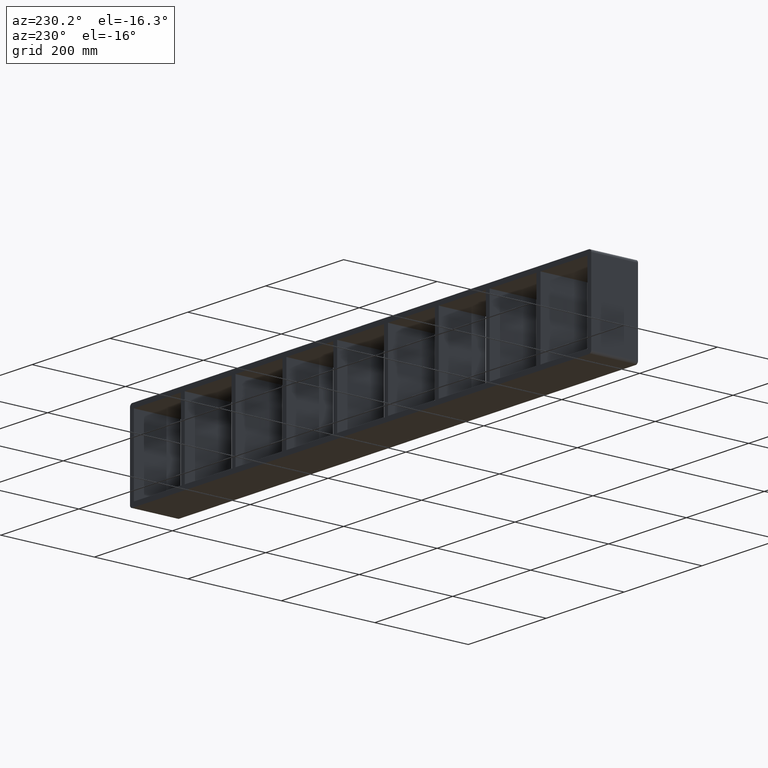
[diagram: clean part render]
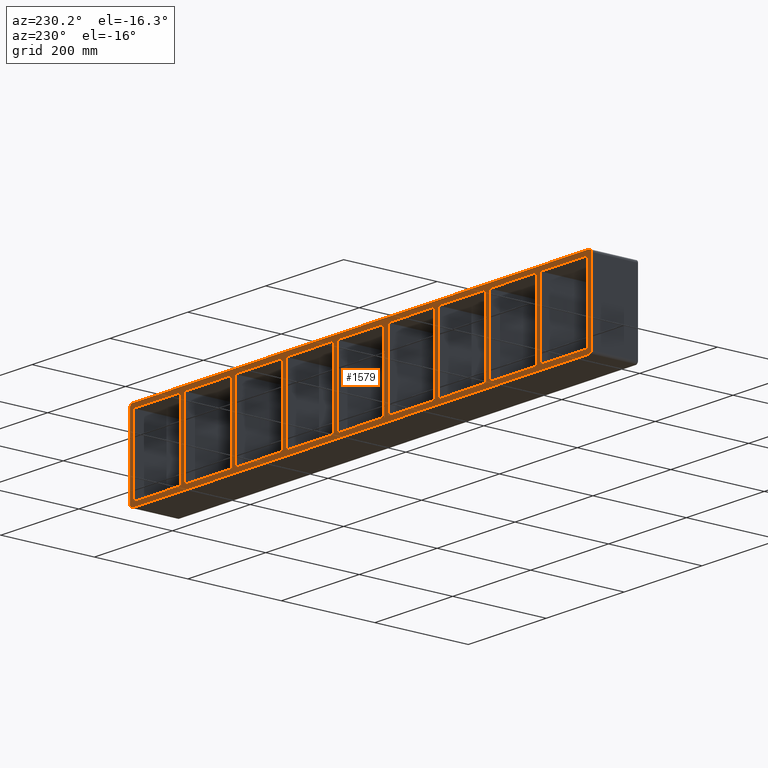
[diagram: same view with one face highlighted and labeled with its STEP entity id]
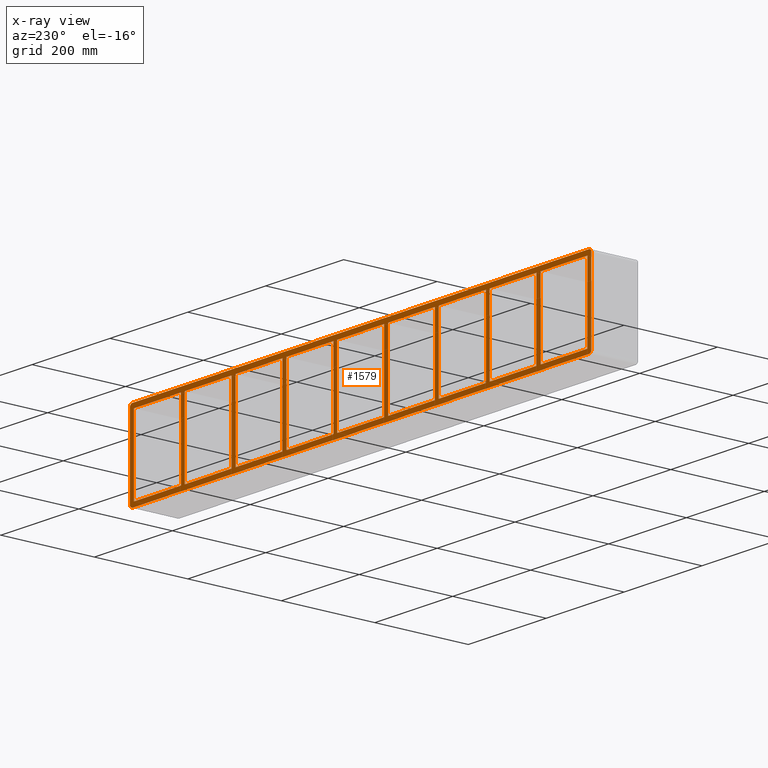
[diagram: x-ray of the same camera — body ghosted, the highlighted face saturated]
A machine part, auxiliary view. The second image highlights one B-rep face of the part: STEP entity #1579.
The next image is the same camera in x-ray: the body ghosted, the highlighted face saturated — about 0% of this face is hidden behind the body in this view.
In plain terms, the highlighted planar face has unit normal (0, -1, 0).
Its self-contained STEP definition (entity closure, byte-faithful):
#83=CARTESIAN_POINT('',(451.74999999998931,97.0,79.75));
#84=VERTEX_POINT('',#83);
#91=CARTESIAN_POINT('',(451.74999999998931,97.0,-79.750000000000014));
#92=VERTEX_POINT('',#91);
#93=CARTESIAN_POINT('',(451.74999999998931,97.0,-79.750000000000014));
#94=DIRECTION('',(0.0,0.0,1.0));
#95=VECTOR('',#94,159.5);
#96=LINE('',#93,#95);
#97=EDGE_CURVE('',#92,#84,#96,.T.);
#123=CARTESIAN_POINT('',(461.74999999999375,97.0,-79.750000000003766));
#124=VERTEX_POINT('',#123);
#131=CARTESIAN_POINT('',(461.74999999999375,97.0,79.75));
#132=VERTEX_POINT('',#131);
#133=CARTESIAN_POINT('',(461.74999999999375,97.0,79.75));
#134=DIRECTION('',(0.0,0.0,-1.0));
#135=VECTOR('',#134,159.50000000000375);
#136=LINE('',#133,#135);
#137=EDGE_CURVE('',#132,#124,#136,.T.);
#163=CARTESIAN_POINT('',(321.24999999998931,97.0,79.75));
#164=VERTEX_POINT('',#163);
#171=CARTESIAN_POINT('',(321.24999999998931,97.0,-79.750000000000014));
#172=VERTEX_POINT('',#171);
#173=CARTESIAN_POINT('',(321.24999999998931,97.0,-79.750000000000014));
#174=DIRECTION('',(0.0,0.0,1.0));
#175=VECTOR('',#174,159.5);
#176=LINE('',#173,#175);
#177=EDGE_CURVE('',#172,#164,#176,.T.);
#203=CARTESIAN_POINT('',(331.24999999999375,97.0,-79.750000000003766));
#204=VERTEX_POINT('',#203);
#211=CARTESIAN_POINT('',(331.24999999999375,97.0,79.75));
#212=VERTEX_POINT('',#211);
#213=CARTESIAN_POINT('',(331.24999999999375,97.0,79.75));
#214=DIRECTION('',(0.0,0.0,-1.0));
#215=VECTOR('',#214,159.50000000000375);
#216=LINE('',#213,#215);
#217=EDGE_CURVE('',#212,#204,#216,.T.);
#243=CARTESIAN_POINT('',(190.74999999998926,97.0,79.75));
#244=VERTEX_POINT('',#243);
#251=CARTESIAN_POINT('',(190.74999999998926,97.0,-79.750000000000014));
#252=VERTEX_POINT('',#251);
#253=CARTESIAN_POINT('',(190.74999999998926,97.0,-79.750000000000014));
#254=DIRECTION('',(0.0,0.0,1.0));
#255=VECTOR('',#254,159.5);
#256=LINE('',#253,#255);
#257=EDGE_CURVE('',#252,#244,#256,.T.);
#283=CARTESIAN_POINT('',(200.74999999999366,97.0,-79.750000000003766));
#284=VERTEX_POINT('',#283);
#291=CARTESIAN_POINT('',(200.74999999999366,97.0,79.75));
#292=VERTEX_POINT('',#291);
#293=CARTESIAN_POINT('',(200.74999999999366,97.0,79.75));
#294=DIRECTION('',(0.0,0.0,-1.0));
#295=VECTOR('',#294,159.50000000000375);
#296=LINE('',#293,#295);
#297=EDGE_CURVE('',#292,#284,#296,.T.);
#323=CARTESIAN_POINT('',(60.249999999989292,97.0,79.75));
#324=VERTEX_POINT('',#323);
#331=CARTESIAN_POINT('',(60.249999999989292,97.0,-79.750000000000014));
#332=VERTEX_POINT('',#331);
#333=CARTESIAN_POINT('',(60.249999999989292,97.0,-79.750000000000014));
#334=DIRECTION('',(0.0,0.0,1.0));
#335=VECTOR('',#334,159.5);
#336=LINE('',#333,#335);
#337=EDGE_CURVE('',#332,#324,#336,.T.);
#363=CARTESIAN_POINT('',(70.24999999999369,97.0,-79.750000000003766));
#364=VERTEX_POINT('',#363);
#371=CARTESIAN_POINT('',(70.24999999999369,97.0,79.75));
#372=VERTEX_POINT('',#371);
#373=CARTESIAN_POINT('',(70.24999999999369,97.0,79.75));
#374=DIRECTION('',(0.0,0.0,-1.0));
#375=VECTOR('',#374,159.50000000000375);
#376=LINE('',#373,#375);
#377=EDGE_CURVE('',#372,#364,#376,.T.);
#403=CARTESIAN_POINT('',(-70.250000000010715,97.0,79.75));
#404=VERTEX_POINT('',#403);
#411=CARTESIAN_POINT('',(-70.250000000010715,97.0,-79.750000000000014));
#412=VERTEX_POINT('',#411);
#413=CARTESIAN_POINT('',(-70.250000000010715,97.0,-79.750000000000014));
#414=DIRECTION('',(0.0,0.0,1.0));
#415=VECTOR('',#414,159.5);
#416=LINE('',#413,#415);
#417=EDGE_CURVE('',#412,#404,#416,.T.);
#443=CARTESIAN_POINT('',(-60.25000000000631,97.0,-79.750000000003766));
#444=VERTEX_POINT('',#443);
#451=CARTESIAN_POINT('',(-60.25000000000631,97.0,79.75));
#452=VERTEX_POINT('',#451);
#453=CARTESIAN_POINT('',(-60.25000000000631,97.0,79.75));
#454=DIRECTION('',(0.0,0.0,-1.0));
#455=VECTOR('',#454,159.50000000000375);
#456=LINE('',#453,#455);
#457=EDGE_CURVE('',#452,#444,#456,.T.);
#483=CARTESIAN_POINT('',(-200.7500000000108,97.0,79.75));
#484=VERTEX_POINT('',#483);
#491=CARTESIAN_POINT('',(-200.7500000000108,97.0,-79.750000000000014));
#492=VERTEX_POINT('',#491);
#493=CARTESIAN_POINT('',(-200.7500000000108,97.0,-79.750000000000014));
#494=DIRECTION('',(0.0,0.0,1.0));
#495=VECTOR('',#494,159.5);
#496=LINE('',#493,#495);
#497=EDGE_CURVE('',#492,#484,#496,.T.);
#523=CARTESIAN_POINT('',(-190.75000000000639,97.0,-79.750000000003766));
#524=VERTEX_POINT('',#523);
#531=CARTESIAN_POINT('',(-190.75000000000639,97.0,79.75));
#532=VERTEX_POINT('',#531);
#533=CARTESIAN_POINT('',(-190.75000000000639,97.0,79.75));
#534=DIRECTION('',(0.0,0.0,-1.0));
#535=VECTOR('',#534,159.50000000000375);
#536=LINE('',#533,#535);
#537=EDGE_CURVE('',#532,#524,#536,.T.);
#563=CARTESIAN_POINT('',(-331.2500000000108,97.0,79.75));
#564=VERTEX_POINT('',#563);
#571=CARTESIAN_POINT('',(-331.2500000000108,97.0,-79.750000000000014));
#572=VERTEX_POINT('',#571);
#573=CARTESIAN_POINT('',(-331.2500000000108,97.0,-79.750000000000014));
#574=DIRECTION('',(0.0,0.0,1.0));
#575=VECTOR('',#574,159.5);
#576=LINE('',#573,#575);
#577=EDGE_CURVE('',#572,#564,#576,.T.);
#603=CARTESIAN_POINT('',(-321.25000000000637,97.0,-79.750000000003766));
#604=VERTEX_POINT('',#603);
#611=CARTESIAN_POINT('',(-321.25000000000637,97.0,79.75));
#612=VERTEX_POINT('',#611);
#613=CARTESIAN_POINT('',(-321.25000000000637,97.0,79.75));
#614=DIRECTION('',(0.0,0.0,-1.0));
#615=VECTOR('',#614,159.50000000000375);
#616=LINE('',#613,#615);
#617=EDGE_CURVE('',#612,#604,#616,.T.);
#634=CARTESIAN_POINT('',(-451.75000000000637,97.0,-79.750000000003766));
#635=VERTEX_POINT('',#634);
#636=CARTESIAN_POINT('',(-451.75000000000637,97.0,-79.750000000000014));
#637=DIRECTION('',(1.0,0.0,0.0));
#638=VECTOR('',#637,120.49999999999557);
#639=LINE('',#636,#638);
#640=EDGE_CURVE('',#635,#572,#639,.T.);
#665=CARTESIAN_POINT('',(-321.25000000000637,97.0,-79.750000000000014));
#666=DIRECTION('',(1.0,0.0,0.0));
#667=VECTOR('',#666,120.49999999999557);
#668=LINE('',#665,#667);
#669=EDGE_CURVE('',#604,#492,#668,.T.);
#687=CARTESIAN_POINT('',(-190.75000000000637,97.0,-79.750000000000014));
#688=DIRECTION('',(1.0,0.0,0.0));
#689=VECTOR('',#688,120.49999999999568);
#690=LINE('',#687,#689);
#691=EDGE_CURVE('',#524,#412,#690,.T.);
#709=CARTESIAN_POINT('',(-60.250000000006253,97.0,-79.750000000000014));
#710=DIRECTION('',(1.0,0.0,0.0));
#711=VECTOR('',#710,120.49999999999554);
#712=LINE('',#709,#711);
#713=EDGE_CURVE('',#444,#332,#712,.T.);
#731=CARTESIAN_POINT('',(70.24999999999369,97.0,-79.750000000000014));
#732=DIRECTION('',(1.0,0.0,0.0));
#733=VECTOR('',#732,120.49999999999557);
#734=LINE('',#731,#733);
#735=EDGE_CURVE('',#364,#252,#734,.T.);
#753=CARTESIAN_POINT('',(200.74999999999366,97.0,-79.750000000000014));
#754=DIRECTION('',(1.0,0.0,0.0));
#755=VECTOR('',#754,120.49999999999565);
#756=LINE('',#753,#755);
#757=EDGE_CURVE('',#284,#172,#756,.T.);
#775=CARTESIAN_POINT('',(331.24999999999375,97.0,-79.750000000000014));
#776=DIRECTION('',(1.0,0.0,0.0));
#777=VECTOR('',#776,120.49999999999557);
#778=LINE('',#775,#777);
#779=EDGE_CURVE('',#204,#92,#778,.T.);
#805=CARTESIAN_POINT('',(582.25,97.0,-79.750000000000014));
#806=VERTEX_POINT('',#805);
#813=CARTESIAN_POINT('',(461.74999999999375,97.0,-79.750000000000014));
#814=DIRECTION('',(1.0,0.0,0.0));
#815=VECTOR('',#814,120.50000000000625);
#816=LINE('',#813,#815);
#817=EDGE_CURVE('',#124,#806,#816,.T.);
#836=CARTESIAN_POINT('',(-451.75000000000637,97.0,79.75));
#837=VERTEX_POINT('',#836);
#844=CARTESIAN_POINT('',(-331.2500000000108,97.0,79.75));
#845=DIRECTION('',(-1.0,0.0,0.0));
#846=VECTOR('',#845,120.49999999999557);
#847=LINE('',#844,#846);
#848=EDGE_CURVE('',#564,#837,#847,.T.);
#866=CARTESIAN_POINT('',(-200.7500000000108,97.0,79.75));
#867=DIRECTION('',(-1.0,0.0,0.0));
#868=VECTOR('',#867,120.49999999999562);
#869=LINE('',#866,#868);
#870=EDGE_CURVE('',#484,#612,#869,.T.);
#888=CARTESIAN_POINT('',(-70.250000000010715,97.0,79.75));
#889=DIRECTION('',(-1.0,0.0,0.0));
#890=VECTOR('',#889,120.49999999999568);
#891=LINE('',#888,#890);
#892=EDGE_CURVE('',#404,#532,#891,.T.);
#910=CARTESIAN_POINT('',(60.249999999989257,97.0,79.75));
#911=DIRECTION('',(-1.0,0.0,0.0));
#912=VECTOR('',#911,120.49999999999557);
#913=LINE('',#910,#912);
#914=EDGE_CURVE('',#324,#452,#913,.T.);
#932=CARTESIAN_POINT('',(190.74999999998926,97.0,79.75));
#933=DIRECTION('',(-1.0,0.0,0.0));
#934=VECTOR('',#933,120.49999999999557);
#935=LINE('',#932,#934);
#936=EDGE_CURVE('',#244,#372,#935,.T.);
#954=CARTESIAN_POINT('',(321.24999999998937,97.0,79.75));
#955=DIRECTION('',(-1.0,0.0,0.0));
#956=VECTOR('',#955,120.49999999999568);
#957=LINE('',#954,#956);
#958=EDGE_CURVE('',#164,#292,#957,.T.);
#969=CARTESIAN_POINT('',(582.25,97.0,79.75));
#970=VERTEX_POINT('',#969);
#971=CARTESIAN_POINT('',(582.25,97.0,79.75));
#972=DIRECTION('',(-1.0,0.0,0.0));
#973=VECTOR('',#972,120.50000000000631);
#974=LINE('',#971,#973);
#975=EDGE_CURVE('',#970,#132,#974,.T.);
#1007=CARTESIAN_POINT('',(451.74999999998937,97.0,79.75));
#1008=DIRECTION('',(-1.0,0.0,0.0));
#1009=VECTOR('',#1008,120.49999999999557);
#1010=LINE('',#1007,#1009);
#1011=EDGE_CURVE('',#84,#212,#1010,.T.);
#1031=CARTESIAN_POINT('',(-461.7500000000108,97.0,79.75));
#1032=VERTEX_POINT('',#1031);
#1039=CARTESIAN_POINT('',(-461.7500000000108,97.0,-79.750000000000014));
#1040=VERTEX_POINT('',#1039);
#1041=CARTESIAN_POINT('',(-461.7500000000108,97.0,-79.750000000000014));
#1042=DIRECTION('',(0.0,0.0,1.0));
#1043=VECTOR('',#1042,159.5);
#1044=LINE('',#1041,#1043);
#1045=EDGE_CURVE('',#1040,#1032,#1044,.T.);
#1068=CARTESIAN_POINT('',(-451.75000000000637,97.0,79.75));
#1069=DIRECTION('',(0.0,0.0,-1.0));
#1070=VECTOR('',#1069,159.50000000000375);
#1071=LINE('',#1068,#1070);
#1072=EDGE_CURVE('',#837,#635,#1071,.T.);
#1084=CARTESIAN_POINT('',(-582.25,97.0,-79.750000000000014));
#1085=VERTEX_POINT('',#1084);
#1086=CARTESIAN_POINT('',(-582.24999999999989,97.0,-79.750000000000014));
#1087=DIRECTION('',(1.0,0.0,0.0));
#1088=VECTOR('',#1087,120.4999999999892);
#1089=LINE('',#1086,#1088);
#1090=EDGE_CURVE('',#1085,#1040,#1089,.T.);
#1123=CARTESIAN_POINT('',(-582.25,97.0,79.75));
#1124=VERTEX_POINT('',#1123);
#1131=CARTESIAN_POINT('',(-461.7500000000108,97.0,79.75));
#1132=DIRECTION('',(-1.0,0.0,0.0));
#1133=VECTOR('',#1132,120.4999999999892);
#1134=LINE('',#1131,#1133);
#1135=EDGE_CURVE('',#1032,#1124,#1134,.T.);
#1153=CARTESIAN_POINT('',(582.25,97.0,-79.750000000000028));
#1154=DIRECTION('',(0.0,0.0,1.0));
#1155=VECTOR('',#1154,159.50000000000003);
#1156=LINE('',#1153,#1155);
#1157=EDGE_CURVE('',#806,#970,#1156,.T.);
#1175=CARTESIAN_POINT('',(-582.25,97.0,79.75));
#1176=DIRECTION('',(0.0,0.0,-1.0));
#1177=VECTOR('',#1176,159.5);
#1178=LINE('',#1175,#1177);
#1179=EDGE_CURVE('',#1124,#1085,#1178,.T.);
#1319=CARTESIAN_POINT('',(592.25000000000011,97.0,83.749999999999986));
#1320=VERTEX_POINT('',#1319);
#1327=CARTESIAN_POINT('',(586.25000000000011,97.0,89.750000000000014));
#1328=VERTEX_POINT('',#1327);
#1329=CARTESIAN_POINT('',(586.25000000000011,97.0,83.75));
#1330=DIRECTION('',(0.0,1.0,0.0));
#1331=DIRECTION('',(0.0,0.0,1.0));
#1332=AXIS2_PLACEMENT_3D('',#1329,#1330,#1331);
#1333=CIRCLE('',#1332,6.000000000000001);
#1334=EDGE_CURVE('',#1328,#1320,#1333,.T.);
#1352=CARTESIAN_POINT('',(-586.25,97.0,89.750000000000014));
#1353=VERTEX_POINT('',#1352);
#1354=CARTESIAN_POINT('',(-586.25,97.0,89.750000000000014));
#1355=DIRECTION('',(1.0,0.0,0.0));
#1356=VECTOR('',#1355,1172.5000000000002);
#1357=LINE('',#1354,#1356);
#1358=EDGE_CURVE('',#1353,#1328,#1357,.T.);
#1376=CARTESIAN_POINT('',(-592.25,97.0,83.749999999999986));
#1377=VERTEX_POINT('',#1376);
#1378=CARTESIAN_POINT('',(-586.25,97.0,83.75));
#1379=DIRECTION('',(0.0,1.0,0.0));
#1380=DIRECTION('',(-1.0,0.0,0.0));
#1381=AXIS2_PLACEMENT_3D('',#1378,#1379,#1380);
#1382=CIRCLE('',#1381,6.000000000000001);
#1383=EDGE_CURVE('',#1377,#1353,#1382,.T.);
#1401=CARTESIAN_POINT('',(-592.25,97.0,-83.750000000000014));
#1402=VERTEX_POINT('',#1401);
#1403=CARTESIAN_POINT('',(-592.25,97.0,-83.75));
#1404=DIRECTION('',(0.0,0.0,1.0));
#1405=VECTOR('',#1404,167.5);
#1406=LINE('',#1403,#1405);
#1407=EDGE_CURVE('',#1402,#1377,#1406,.T.);
#1425=CARTESIAN_POINT('',(-586.25,97.0,-89.750000000000028));
#1426=VERTEX_POINT('',#1425);
#1427=CARTESIAN_POINT('',(-586.25,97.0,-83.75));
#1428=DIRECTION('',(0.0,1.0,0.0));
#1429=DIRECTION('',(0.0,0.0,-1.0));
#1430=AXIS2_PLACEMENT_3D('',#1427,#1428,#1429);
#1431=CIRCLE('',#1430,6.000000000000001);
#1432=EDGE_CURVE('',#1426,#1402,#1431,.T.);
#1450=CARTESIAN_POINT('',(586.25000000000011,97.0,-89.750000000000028));
#1451=VERTEX_POINT('',#1450);
#1452=CARTESIAN_POINT('',(586.25000000000011,97.0,-89.750000000000014));
#1453=DIRECTION('',(-1.0,0.0,0.0));
#1454=VECTOR('',#1453,1172.5000000000002);
#1455=LINE('',#1452,#1454);
#1456=EDGE_CURVE('',#1451,#1426,#1455,.T.);
#1474=CARTESIAN_POINT('',(592.25,97.0,-83.750000000000014));
#1475=VERTEX_POINT('',#1474);
#1476=CARTESIAN_POINT('',(586.25000000000011,97.0,-83.75));
#1477=DIRECTION('',(0.0,1.0,0.0));
#1478=DIRECTION('',(1.0,0.0,0.0));
#1479=AXIS2_PLACEMENT_3D('',#1476,#1477,#1478);
#1480=CIRCLE('',#1479,6.000000000000001);
#1481=EDGE_CURVE('',#1475,#1451,#1480,.T.);
#1499=CARTESIAN_POINT('',(592.25000000000011,97.0,83.749999999999986));
#1500=DIRECTION('',(0.0,0.0,-1.0));
#1501=VECTOR('',#1500,167.5);
#1502=LINE('',#1499,#1501);
#1503=EDGE_CURVE('',#1320,#1475,#1502,.T.);
#1510=CARTESIAN_POINT('',(7.516613E-014,97.0,-1.475775E-016));
#1511=DIRECTION('',(0.0,-1.0,0.0));
#1512=DIRECTION('',(0.0,0.0,-1.0));
#1513=AXIS2_PLACEMENT_3D('',#1510,#1511,#1512);
#1514=PLANE('',#1513);
#1515=ORIENTED_EDGE('',*,*,#1503,.T.);
#1516=ORIENTED_EDGE('',*,*,#1481,.T.);
#1517=ORIENTED_EDGE('',*,*,#1456,.T.);
#1518=ORIENTED_EDGE('',*,*,#1432,.T.);
#1519=ORIENTED_EDGE('',*,*,#1407,.T.);
#1520=ORIENTED_EDGE('',*,*,#1383,.T.);
#1521=ORIENTED_EDGE('',*,*,#1358,.T.);
#1522=ORIENTED_EDGE('',*,*,#1334,.T.);
#1523=EDGE_LOOP('',(#1515,#1516,#1517,#1518,#1519,#1520,#1521,#1522));
#1524=FACE_OUTER_BOUND('',#1523,.T.);
#1525=ORIENTED_EDGE('',*,*,#817,.T.);
#1526=ORIENTED_EDGE('',*,*,#1157,.T.);
#1527=ORIENTED_EDGE('',*,*,#975,.T.);
#1528=ORIENTED_EDGE('',*,*,#137,.T.);
#1529=EDGE_LOOP('',(#1525,#1526,#1527,#1528));
#1530=FACE_BOUND('',#1529,.T.);
#1531=ORIENTED_EDGE('',*,*,#97,.T.);
#1532=ORIENTED_EDGE('',*,*,#1011,.T.);
#1533=ORIENTED_EDGE('',*,*,#217,.T.);
#1534=ORIENTED_EDGE('',*,*,#779,.T.);
#1535=EDGE_LOOP('',(#1531,#1532,#1533,#1534));
#1536=FACE_BOUND('',#1535,.T.);
#1537=ORIENTED_EDGE('',*,*,#177,.T.);
#1538=ORIENTED_EDGE('',*,*,#958,.T.);
#1539=ORIENTED_EDGE('',*,*,#297,.T.);
#1540=ORIENTED_EDGE('',*,*,#757,.T.);
#1541=EDGE_LOOP('',(#1537,#1538,#1539,#1540));
#1542=FACE_BOUND('',#1541,.T.);
#1543=ORIENTED_EDGE('',*,*,#257,.T.);
#1544=ORIENTED_EDGE('',*,*,#936,.T.);
#1545=ORIENTED_EDGE('',*,*,#377,.T.);
#1546=ORIENTED_EDGE('',*,*,#735,.T.);
#1547=EDGE_LOOP('',(#1543,#1544,#1545,#1546));
#1548=FACE_BOUND('',#1547,.T.);
#1549=ORIENTED_EDGE('',*,*,#337,.T.);
#1550=ORIENTED_EDGE('',*,*,#914,.T.);
#1551=ORIENTED_EDGE('',*,*,#457,.T.);
#1552=ORIENTED_EDGE('',*,*,#713,.T.);
#1553=EDGE_LOOP('',(#1549,#1550,#1551,#1552));
#1554=FACE_BOUND('',#1553,.T.);
#1555=ORIENTED_EDGE('',*,*,#417,.T.);
#1556=ORIENTED_EDGE('',*,*,#892,.T.);
#1557=ORIENTED_EDGE('',*,*,#537,.T.);
#1558=ORIENTED_EDGE('',*,*,#691,.T.);
#1559=EDGE_LOOP('',(#1555,#1556,#1557,#1558));
#1560=FACE_BOUND('',#1559,.T.);
#1561=ORIENTED_EDGE('',*,*,#497,.T.);
#1562=ORIENTED_EDGE('',*,*,#870,.T.);
#1563=ORIENTED_EDGE('',*,*,#617,.T.);
#1564=ORIENTED_EDGE('',*,*,#669,.T.);
#1565=EDGE_LOOP('',(#1561,#1562,#1563,#1564));
#1566=FACE_BOUND('',#1565,.T.);
#1567=ORIENTED_EDGE('',*,*,#577,.T.);
#1568=ORIENTED_EDGE('',*,*,#848,.T.);
#1569=ORIENTED_EDGE('',*,*,#1072,.T.);
#1570=ORIENTED_EDGE('',*,*,#640,.T.);
#1571=EDGE_LOOP('',(#1567,#1568,#1569,#1570));
#1572=FACE_BOUND('',#1571,.T.);
#1573=ORIENTED_EDGE('',*,*,#1045,.T.);
#1574=ORIENTED_EDGE('',*,*,#1135,.T.);
#1575=ORIENTED_EDGE('',*,*,#1179,.T.);
#1576=ORIENTED_EDGE('',*,*,#1090,.T.);
#1577=EDGE_LOOP('',(#1573,#1574,#1575,#1576));
#1578=FACE_BOUND('',#1577,.T.);
#1579=ADVANCED_FACE('',(#1524,#1530,#1536,#1542,#1548,#1554,#1560,#1566,#1572,#1578),#1514,.F.);